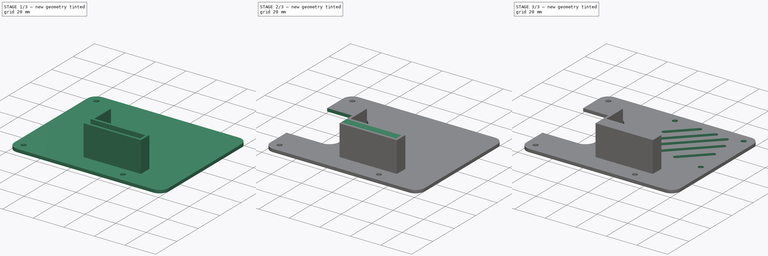
[diagram: build sequence overview — one tinted view per stage of 3, left to right]
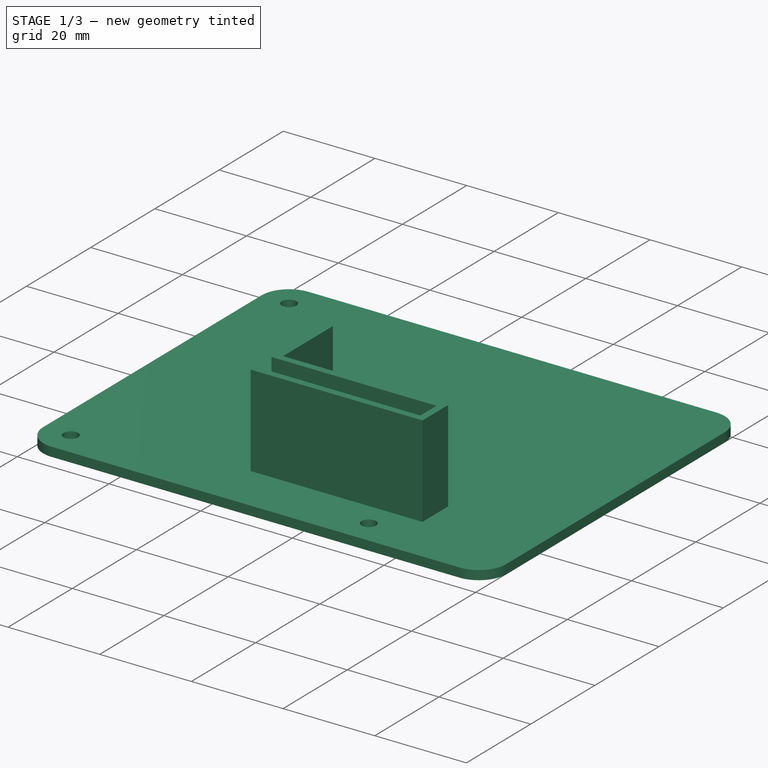
[diagram: stage 1 of 3 — iso view after this stage's code; geometry added in this stage tinted green]
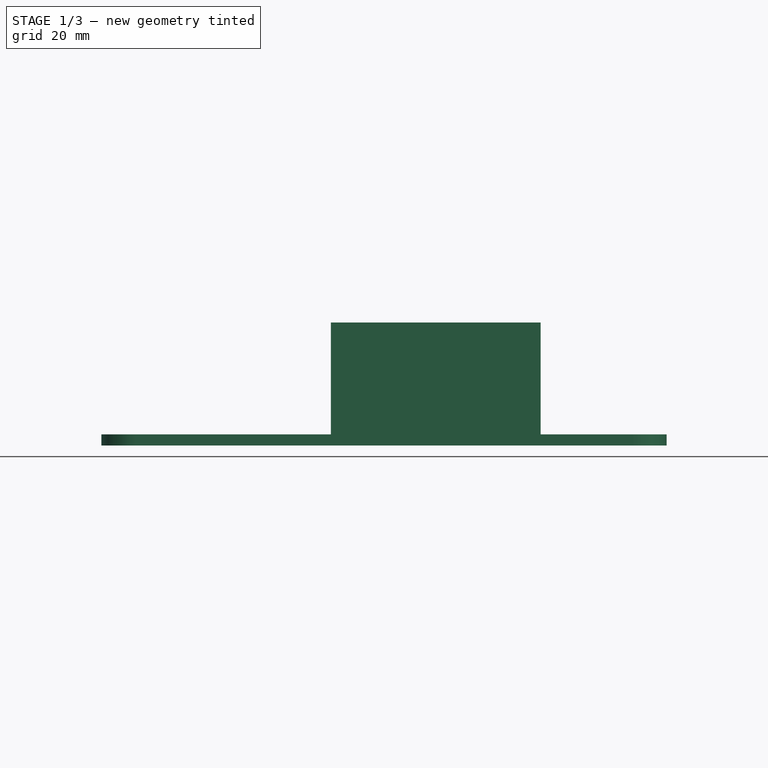
[diagram: stage 1 of 3 — front view after this stage's code; geometry added in this stage tinted green]
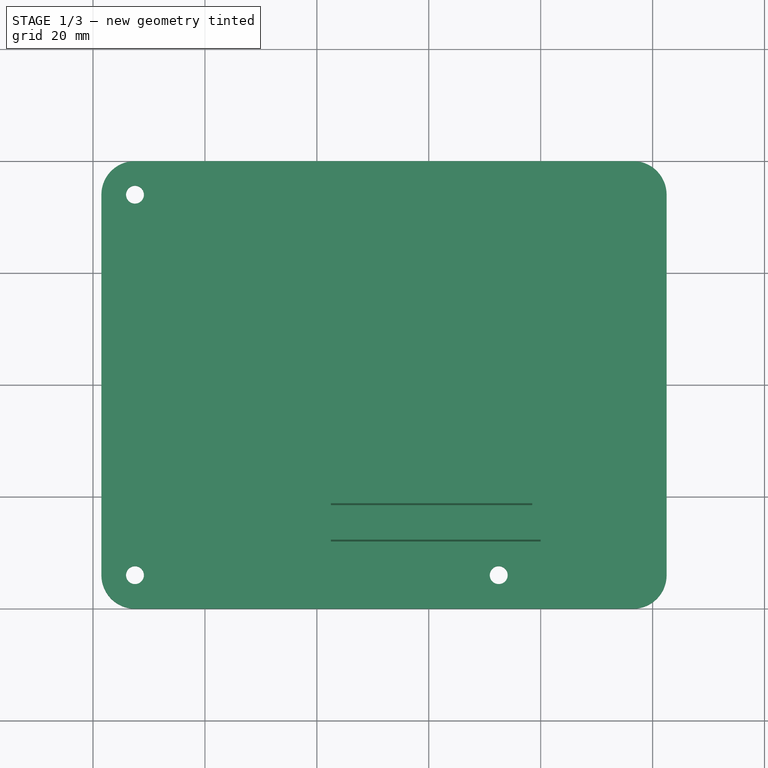
[diagram: stage 1 of 3 — top view after this stage's code; geometry added in this stage tinted green]
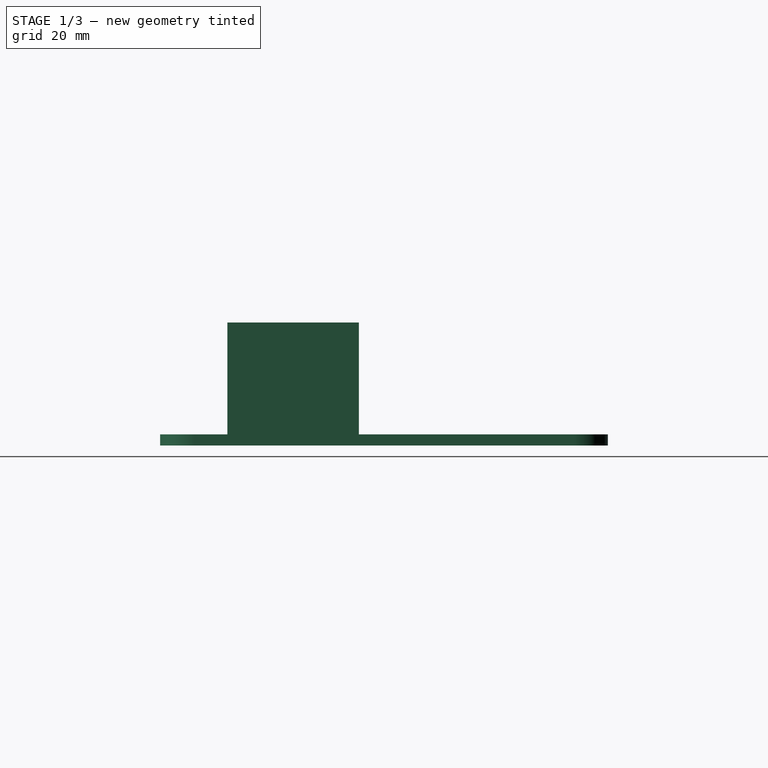
[diagram: stage 1 of 3 — right view after this stage's code; geometry added in this stage tinted green]
FCSTD DOCUMENT  (FreeCAD 0.19R24291 (Git))
Label: receiver-and-balance-breakout
License: All rights reserved
LicenseURL: http://en.wikipedia.org/wiki/All_rights_reserved
objects: Sketcher::SketchObject×6, PartDesign::Pad×3, PartDesign::Pocket×3, Spreadsheet::Sheet×1, PartDesign::Plane×1, PartDesign::Body×1
note: 20 computed .brp shape members not serialized (recipe doc carries the construction recipe); baked Part::Feature solids carry a one-line shape summary decoded from their .brp

FEATURE [Spreadsheet::Sheet] Spreadsheet  label="measurements"
  cells = A1=mountingSeparationWidth; B1(mountingSeparationWidth)=68; D1=receiverWidth; E1(receiverWidth)=19; A2=mountingSeparationLength; B2(mountingSeparationLength)=65; A3=mountingBoltRadius; B3(mountingBoltRadius)=1.6; A4=baseThickness; B4(baseThickness)=2; A5=wallThickness; B5(wallThickness)=1.5; A6=mountingPillarRadius; B6(mountingPillarRadius)=6
FEATURE [Sketcher::SketchObject] Sketch  label="mountingSurface"
  FullyConstrained = true
  MapMode = 5
  Support = -> [XY_Plane]
  expr: Constraints[0] = Spreadsheet.mountingBoltRadius
  expr: Constraints[2] = Spreadsheet.mountingBoltRadius
  expr: Constraints[4] = Spreadsheet.mountingSeparationLength
  expr: Constraints[1] = Spreadsheet.mountingBoltRadius
  expr: Constraints[3] = Spreadsheet.mountingSeparationWidth
  expr: Constraints[17] = Spreadsheet.mountingPillarRadius
  sketch-geometry (11):
    g0: Circle CenterX=-32.5 CenterY=34 CenterZ=0 NormalX=0 NormalY=0 NormalZ=1 AngleXU=0 Radius=1.6
    g1: Circle CenterX=-32.5 CenterY=-34 CenterZ=0 NormalX=0 NormalY=0 NormalZ=1 AngleXU=0 Radius=1.6
    g2: Circle CenterX=32.5 CenterY=-34 CenterZ=0 NormalX=0 NormalY=0 NormalZ=1 AngleXU=0 Radius=1.6
    g3: LineSegment StartX=-32.5 StartY=40 StartZ=0 EndX=56.5 EndY=40 EndZ=0
    g4: LineSegment StartX=62.5 StartY=34 StartZ=0 EndX=62.5 EndY=-34 EndZ=0
    g5: LineSegment StartX=56.5 StartY=-40 StartZ=0 EndX=-32.5 EndY=-40 EndZ=0
    g6: LineSegment StartX=-38.5 StartY=-34 StartZ=0 EndX=-38.5 EndY=34 EndZ=0
    g7: ArcOfCircle CenterX=-32.5 CenterY=-34 CenterZ=0 NormalX=0 NormalY=0 NormalZ=1 AngleXU=0 Radius=6 StartAngle=3.14159 EndAngle=4.71239
    g8: ArcOfCircle CenterX=-32.5 CenterY=34 CenterZ=0 NormalX=0 NormalY=0 NormalZ=1 AngleXU=0 Radius=6 StartAngle=1.5708 EndAngle=3.14159
    g9: ArcOfCircle CenterX=56.5 CenterY=34 CenterZ=0 NormalX=0 NormalY=0 NormalZ=1 AngleXU=0 Radius=6 StartAngle=4e-16 EndAngle=1.5708
    g10: ArcOfCircle CenterX=56.5 CenterY=-34 CenterZ=0 NormalX=0 NormalY=0 NormalZ=1 AngleXU=0 Radius=6 StartAngle=4.71239 EndAngle=6.28319
  constraints (25):
    c: Radius(g0) = 1.6
    c: Radius(g1) = 1.6
    c: Radius(g2) = 1.6
    c: DistanceY(g1,g0) = 68
    c: DistanceX(g1,g2) = 65
    c: Symmetric(g2,g1,g-2)
    c: Symmetric(g0,g1,g-1)
    c: Horizontal(g3)
    c: Horizontal(g5)
    c: Vertical(g4)
    c: Vertical(g6)
    c: Tangent(g6,g7) = 1.5708
    c: Tangent(g5,g7) = 1.5708
    c: Tangent(g3,g8) = 1.5708
    c: Tangent(g6,g8) = 1.5708
    c: Coincident(g8,g0)
    c: Coincident(g7,g1)
    c: DistanceY(g0,g3) = 6
    c: Tangent(g3,g9) = 1.5708
    c: Tangent(g4,g9) = 1.5708
    c: Tangent(g4,g10) = 1.5708
    c: Tangent(g5,g10) = 1.5708
    c: Equal(g7,g10)
    c: Equal(g7,g9)
    c: DistanceX(g2,g4) = 30
FEATURE [PartDesign::Pad] Pad  label="mountingSurfacePad"
  Direction = (1,1,1)
  Length = 2
  Length2 = 100
  Profile = -> Sketch
  Type = 0
  expr: Length = Spreadsheet.baseThickness
FEATURE [Sketcher::SketchObject] Sketch001  label="receiverCasing"
  ExternalGeometry = -> [Sketch]
  FullyConstrained = false
  MapMode = 5
  Support = -> [XY_Plane]
  expr: Constraints[20] = Spreadsheet.wallThickness
  expr: Constraints[21] = Spreadsheet.wallThickness
  expr: Constraints[22] = Spreadsheet.wallThickness
  expr: Constraints[23] = Spreadsheet.wallThickness
  expr: Constraints[29] = Spreadsheet.mountingPillarRadius
  sketch-geometry (11):
    g0: LineSegment StartX=4 StartY=-4.5 StartZ=0 EndX=2.5 EndY=-4.5 EndZ=0
    g1: LineSegment StartX=2.5 StartY=-4.5 StartZ=0 EndX=2.5 EndY=-21.5 EndZ=0
    g2: LineSegment StartX=4 StartY=-4.5 StartZ=0 EndX=4 EndY=-20 EndZ=0
    g3: LineSegment StartX=4 StartY=-20 StartZ=0 EndX=40 EndY=-20 EndZ=0
    g4: LineSegment StartX=40 StartY=-20 StartZ=0 EndX=40 EndY=-28 EndZ=0
    g5: LineSegment StartX=40 StartY=-28 StartZ=0 EndX=2.5 EndY=-28 EndZ=0
    g6: LineSegment StartX=2.5 StartY=-28 StartZ=0 EndX=2.5 EndY=-26.5 EndZ=0
    g7: LineSegment StartX=2.5 StartY=-26.5 StartZ=0 EndX=38.5 EndY=-26.5 EndZ=0
    g8: LineSegment StartX=38.5 StartY=-26.5 StartZ=0 EndX=38.5 EndY=-21.5 EndZ=0
    g9: LineSegment StartX=38.5 StartY=-21.5 StartZ=0 EndX=2.5 EndY=-21.5 EndZ=0
    g10: LineSegment StartX=8.54311 StartY=-24 StartZ=0 EndX=-1.19896 EndY=-24 EndZ=0
  constraints (31):
    c: Coincident(g1,g0)
    c: Vertical(g1)
    c: Coincident(g2,g0)
    c: Vertical(g2)
    c: Coincident(g3,g2)
    c: Horizontal(g3)
    c: Coincident(g4,g3)
    c: Vertical(g4)
    c: Coincident(g5,g4)
    c: Horizontal(g5)
    c: Coincident(g6,g5)
    c: Vertical(g6)
    c: Coincident(g7,g6)
    c: Horizontal(g7)
    c: Coincident(g8,g7)
    c: Vertical(g8)
    c: Coincident(g9,g8)
    c: Coincident(g9,g1)
    c: Horizontal(g9)
    c: Horizontal(g0)
    c: DistanceY(g1,g2) = 1.5
    c: DistanceY(g6,g6) = 1.5
    c: DistanceX(g0,g0) = 1.5
    c: DistanceX(g8,g3) = 1.5
    c: DistanceY(g1,g1) = 17
    c: DistanceY(g8,g8) = 5
    c: DistanceX(g9,g9) = 36
    c: Horizontal(g10)
    c: Symmetric(g6,g1,g10)
    c: DistanceY(g-3,g5) = 6
    c: DistanceX(g-3,g1) = 35
FEATURE [PartDesign::Pad] Pad001  label="receiverCasingPad"
  BaseFeature = -> Pad
  Direction = (1,1,1)
  Length = 22
  Length2 = 100
  Profile = -> Sketch001
  Type = 0
  expr: Length = Spreadsheet.receiverWidth + 2 * Spreadsheet.wallThickness
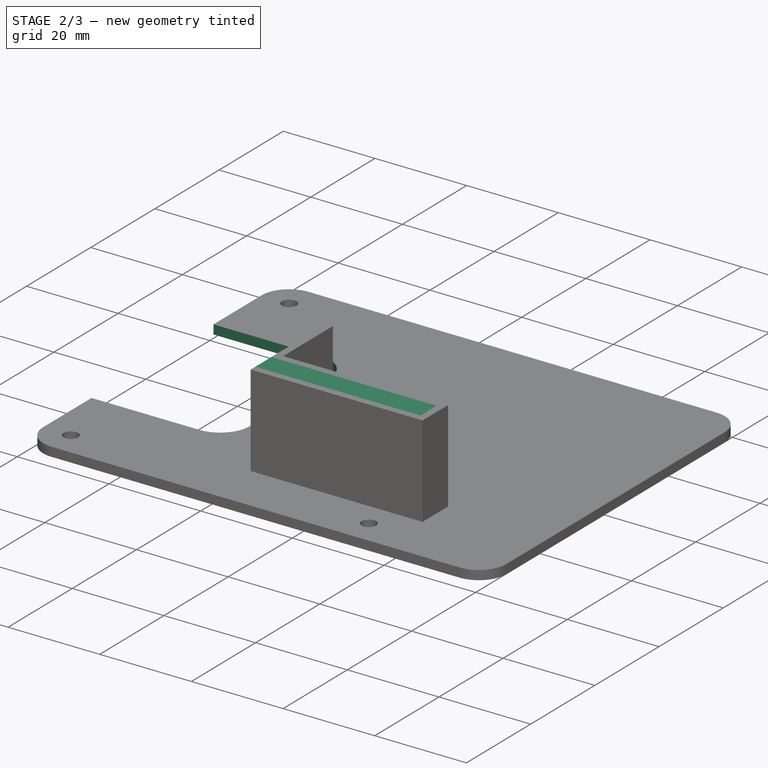
[diagram: stage 2 of 3 — iso view after this stage's code; geometry added in this stage tinted green]
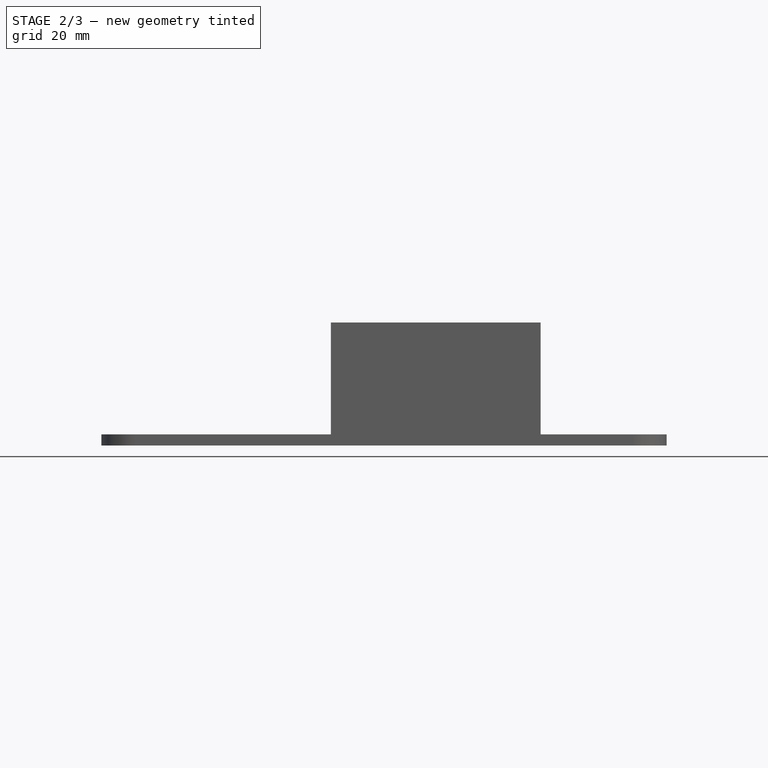
[diagram: stage 2 of 3 — front view after this stage's code; geometry added in this stage tinted green]
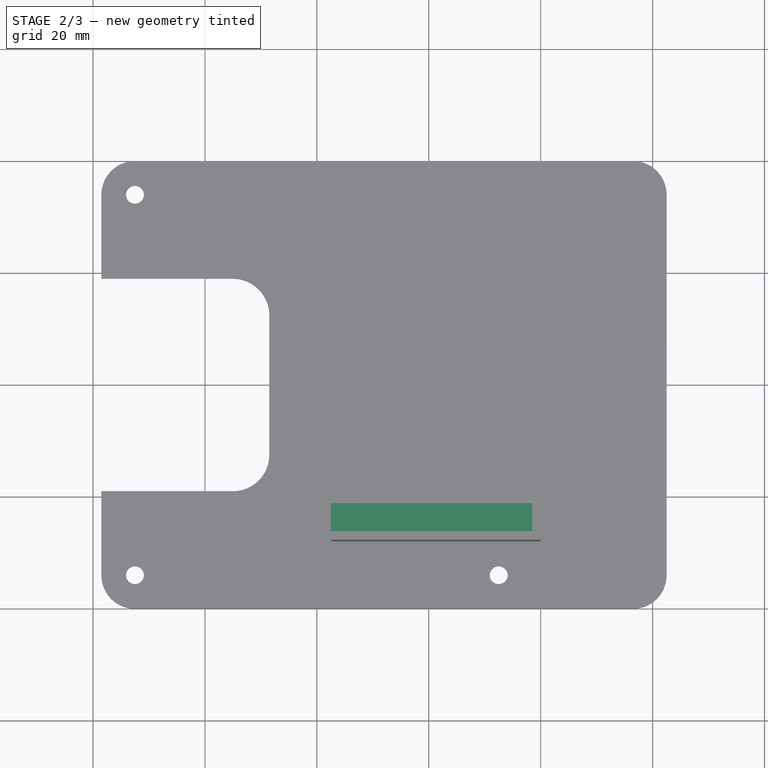
[diagram: stage 2 of 3 — top view after this stage's code; geometry added in this stage tinted green]
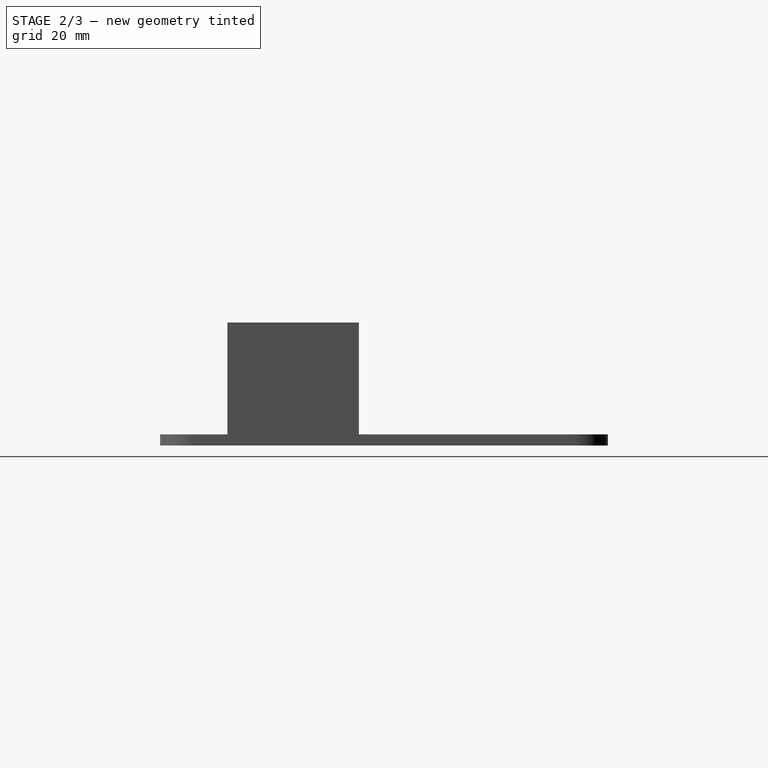
[diagram: stage 2 of 3 — right view after this stage's code; geometry added in this stage tinted green]
FEATURE [PartDesign::Plane] DatumPlane  label="receiverCasingTopPlane"
  Length = 118.978
  MapMode = 5
  Placement = pos=(0,0,22) rot=(0,0,1;0rad)
  ResizeMode = 0
  Support = -> [Pad001]
  Width = 97.9778
FEATURE [Sketcher::SketchObject] Sketch002  label="receiverCasingTop"
  ExternalGeometry = -> [Sketch001]
  FullyConstrained = true
  MapMode = 5
  Placement = pos=(0,0,22) rot=(0,0,1;0rad)
  Support = -> [DatumPlane]
  sketch-geometry (4):
    g0: LineSegment StartX=2.5 StartY=-21.5 StartZ=0 EndX=38.5 EndY=-21.5 EndZ=0
    g1: LineSegment StartX=38.5 StartY=-21.5 StartZ=0 EndX=38.5 EndY=-26.5 EndZ=0
    g2: LineSegment StartX=38.5 StartY=-26.5 StartZ=0 EndX=2.5 EndY=-26.5 EndZ=0
    g3: LineSegment StartX=2.5 StartY=-26.5 StartZ=0 EndX=2.5 EndY=-21.5 EndZ=0
  constraints (10):
    c: Coincident(g0,g1)
    c: Coincident(g1,g2)
    c: Coincident(g2,g3)
    c: Coincident(g3,g0)
    c: Horizontal(g0)
    c: Horizontal(g2)
    c: Vertical(g1)
    c: Vertical(g3)
    c: Coincident(g0,g-3)
    c: Coincident(g1,g-4)
FEATURE [PartDesign::Pad] Pad002  label="receiverCasingTopPad"
  BaseFeature = -> Pad001
  Direction = (1,1,1)
  Length = 1.5
  Length2 = 100
  Profile = -> Sketch002
  Reversed = true
  Type = 0
  expr: Length = Spreadsheet.wallThickness
FEATURE [Sketcher::SketchObject] Sketch003  label="bmsAccessCutout"
  ExternalGeometry = -> [Sketch]
  FullyConstrained = true
  MapMode = 5
  Support = -> [XY_Plane]
  sketch-geometry (6):
    g0: LineSegment StartX=-38.5 StartY=19 StartZ=0 EndX=-15 EndY=19 EndZ=0
    g1: LineSegment StartX=-8.5 StartY=12.5 StartZ=0 EndX=-8.5 EndY=-12.5 EndZ=0
    g2: LineSegment StartX=-15 StartY=-19 StartZ=0 EndX=-38.5 EndY=-19 EndZ=0
    g3: LineSegment StartX=-38.5 StartY=-19 StartZ=0 EndX=-38.5 EndY=19 EndZ=0
    g4: ArcOfCircle CenterX=-15 CenterY=-12.5 CenterZ=0 NormalX=0 NormalY=0 NormalZ=1 AngleXU=0 Radius=6.5 StartAngle=4.71239 EndAngle=6.28319
    g5: ArcOfCircle CenterX=-15 CenterY=12.5 CenterZ=0 NormalX=0 NormalY=0 NormalZ=1 AngleXU=0 Radius=6.5 StartAngle=1.34e-14 EndAngle=1.5708
  constraints (16):
    c: Coincident(g2,g3)
    c: Coincident(g3,g0)
    c: Horizontal(g0)
    c: Horizontal(g2)
    c: Vertical(g1)
    c: Vertical(g3)
    c: PointOnObject(g0,g-5)
    c: DistanceY(g-4,g2) = 15
    c: DistanceY(g0,g-3) = 15
    c: Tangent(g1,g4) = 1.5708
    c: Tangent(g2,g4) = 1.5708
    c: Tangent(g0,g5) = 1.5708
    c: Tangent(g1,g5) = 1.5708
    c: DistanceX(g2,g1) = 30
    c: Equal(g4,g5)
    c: DistanceY(g1,g1) = 25
FEATURE [PartDesign::Pocket] Pocket  label="bmsAccessCutoutPocket"
  BaseFeature = -> Pad002
  Length = 5
  Length2 = 100
  Profile = -> Sketch003
  Reversed = true
  Type = 1
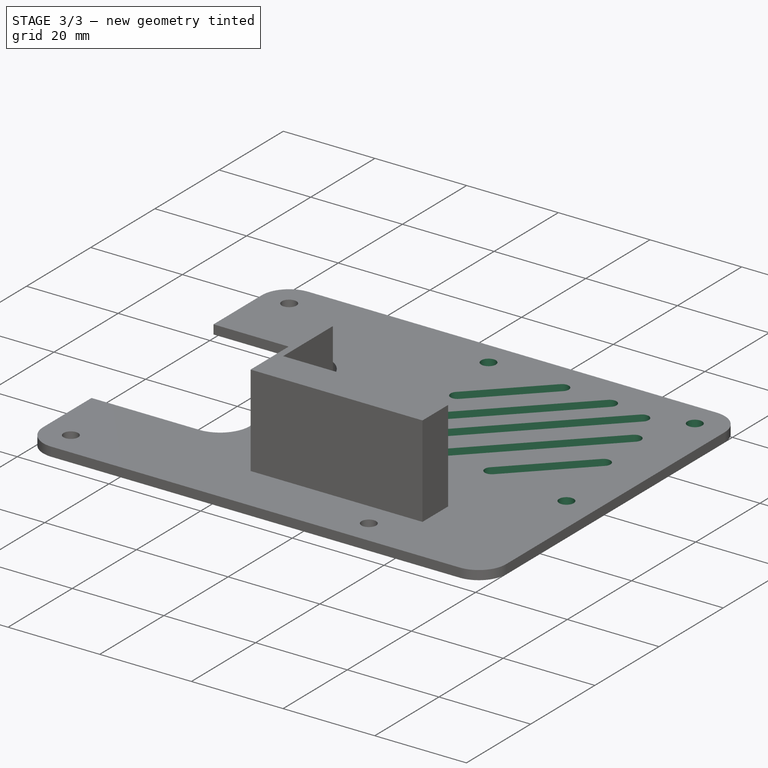
[diagram: stage 3 of 3 — iso view after this stage's code; geometry added in this stage tinted green]
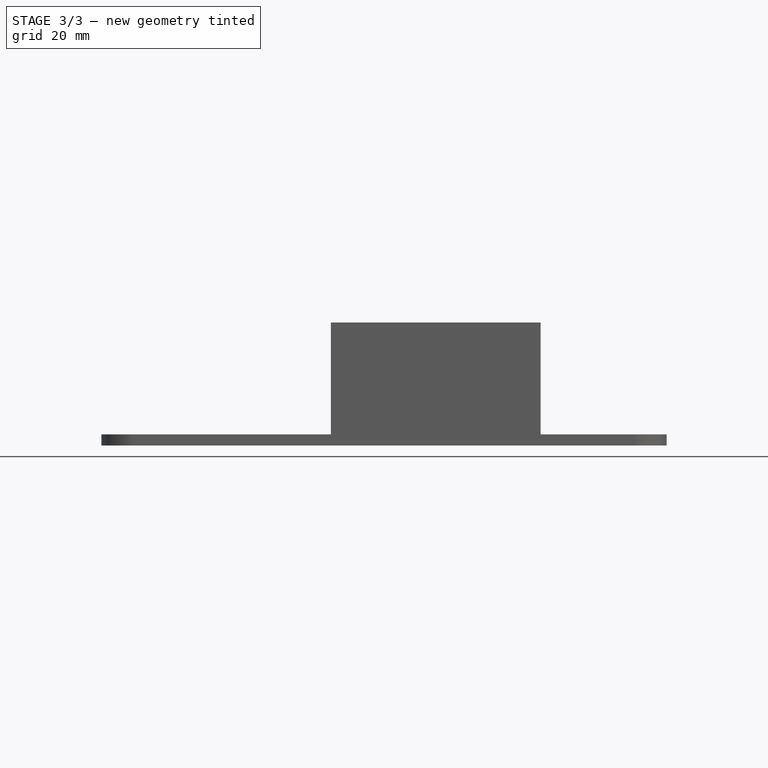
[diagram: stage 3 of 3 — front view after this stage's code; geometry added in this stage tinted green]
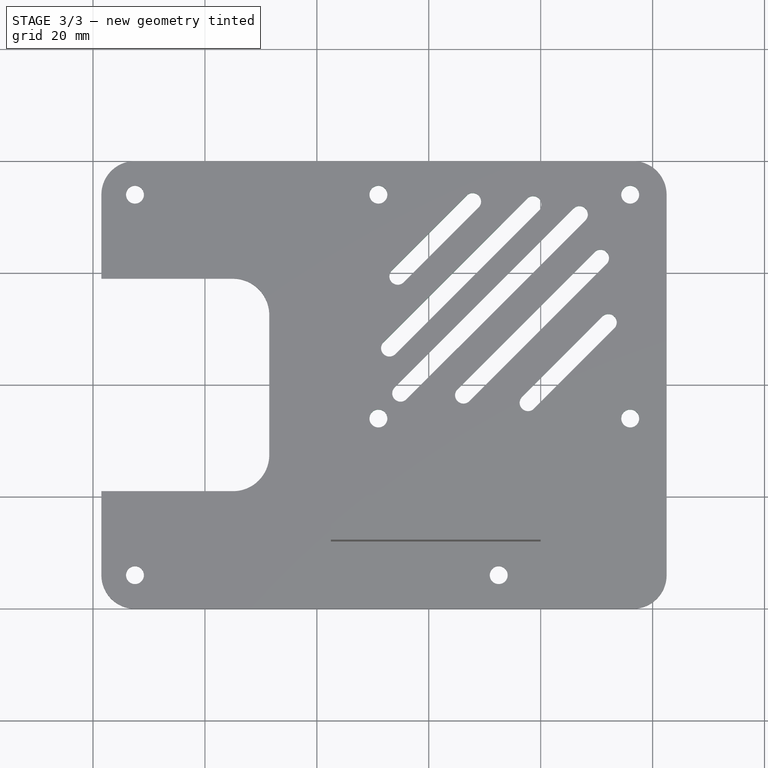
[diagram: stage 3 of 3 — top view after this stage's code; geometry added in this stage tinted green]
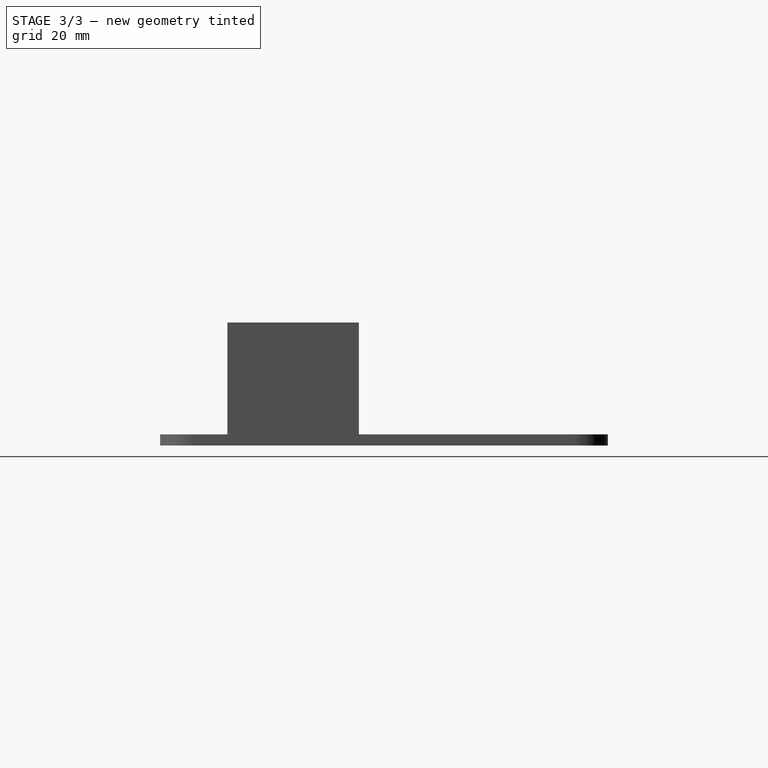
[diagram: stage 3 of 3 — right view after this stage's code; geometry added in this stage tinted green]
FEATURE [Sketcher::SketchObject] Sketch004  label="bmsBreakoutMountHoles"
  ExternalGeometry = -> [Sketch,Sketch001]
  FullyConstrained = false
  MapMode = 5
  Support = -> [XY_Plane]
  expr: Constraints[10] = Spreadsheet.mountingBoltRadius
  expr: Constraints[11] = Spreadsheet.mountingBoltRadius
  expr: Constraints[12] = Spreadsheet.mountingBoltRadius
  expr: Constraints[13] = Spreadsheet.mountingBoltRadius
  sketch-geometry (6):
    g0: Circle CenterX=11 CenterY=34 CenterZ=0 NormalX=0 NormalY=0 NormalZ=1 AngleXU=0 Radius=1.6
    g1: Circle CenterX=11 CenterY=-6 CenterZ=0 NormalX=0 NormalY=0 NormalZ=1 AngleXU=0 Radius=1.6
    g2: Circle CenterX=56 CenterY=34 CenterZ=0 NormalX=0 NormalY=0 NormalZ=1 AngleXU=0 Radius=1.6
    g3: Circle CenterX=56 CenterY=-6 CenterZ=0 NormalX=0 NormalY=0 NormalZ=1 AngleXU=0 Radius=1.6
    g4: LineSegment StartX=18.6637 StartY=14 StartZ=0 EndX=52.5084 EndY=14 EndZ=0
    g5: LineSegment StartX=33.5 StartY=26.8509 StartZ=0 EndX=33.5 EndY=3.81776 EndZ=0
  constraints (14):
    c: DistanceY(g3,g2) = 40
    c: DistanceY(g1,g0) = 40
    c: DistanceX(g0,g2) = 45
    c: DistanceX(g1,g3) = 45
    c: Horizontal(g4)
    c: Vertical(g5)
    c: Symmetric(g2,g0,g5)
    c: Symmetric(g3,g2,g4)
    c: DistanceY(g0,g-3) = 0
    c: DistanceX(g-4,g1) = 7
    c: Radius(g0) = 1.6
    c: Radius(g2) = 1.6
    c: Radius(g1) = 1.6
    c: Radius(g3) = 1.6
FEATURE [PartDesign::Pocket] Pocket001  label="bmsBreakoutMountHolesPocket"
  BaseFeature = -> Pocket
  Length = 5
  Length2 = 100
  Profile = -> Sketch004
  Reversed = true
  Type = 1
FEATURE [Sketcher::SketchObject] Sketch005  label="aestheticPattern"
  ExternalGeometry = -> [Sketch004]
  FullyConstrained = false
  MapMode = 5
  Support = -> [XY_Plane]
  sketch-geometry (20):
    g0: ArcOfCircle CenterX=27.8524 CenterY=32.7944 CenterZ=0 NormalX=0 NormalY=0 NormalZ=1 AngleXU=0 Radius=1.5 StartAngle=5.49779 EndAngle=8.63938
    g1: ArcOfCircle CenterX=14.4577 CenterY=19.3997 CenterZ=0 NormalX=0 NormalY=0 NormalZ=1 AngleXU=0 Radius=1.5 StartAngle=2.35619 EndAngle=5.49779
    g2: LineSegment StartX=26.7917 StartY=33.8551 StartZ=0 EndX=13.3971 EndY=20.4604 EndZ=0
    g3: LineSegment StartX=28.9131 StartY=31.7337 StartZ=0 EndX=15.5184 EndY=18.339 EndZ=0
    g4: ArcOfCircle CenterX=38.6487 CenterY=32.239 CenterZ=0 NormalX=0 NormalY=0 NormalZ=1 AngleXU=0 Radius=1.5 StartAngle=5.49779 EndAngle=8.63938
    g5: ArcOfCircle CenterX=12.9725 CenterY=6.56282 CenterZ=0 NormalX=0 NormalY=0 NormalZ=1 AngleXU=0 Radius=1.5 StartAngle=2.35619 EndAngle=5.49779
    g6: LineSegment StartX=37.588 StartY=33.2997 StartZ=0 EndX=11.9119 EndY=7.62348 EndZ=0
    g7: LineSegment StartX=39.7094 StartY=31.1783 StartZ=0 EndX=14.0332 EndY=5.50216 EndZ=0
    g8: ArcOfCircle CenterX=46.9308 CenterY=30.464 CenterZ=0 NormalX=0 NormalY=0 NormalZ=1 AngleXU=0 Radius=1.5 StartAngle=5.49779 EndAngle=8.63938
    g9: ArcOfCircle CenterX=14.9667 CenterY=-1.5 CenterZ=0 NormalX=0 NormalY=0 NormalZ=1 AngleXU=0 Radius=1.5 StartAngle=2.35619 EndAngle=5.49779
    g10: LineSegment StartX=45.8701 StartY=31.5247 StartZ=0 EndX=13.9061 EndY=-0.43934 EndZ=0
    g11: LineSegment StartX=47.9914 StartY=29.4034 StartZ=0 EndX=16.0274 EndY=-2.56066 EndZ=0
    g12: ArcOfCircle CenterX=50.7092 CenterY=22.6697 CenterZ=0 NormalX=0 NormalY=0 NormalZ=1 AngleXU=0 Radius=1.5 StartAngle=5.49779 EndAngle=8.63938
    g13: ArcOfCircle CenterX=26.1968 CenterY=-1.84268 CenterZ=0 NormalX=0 NormalY=0 NormalZ=1 AngleXU=0 Radius=1.5 StartAngle=2.35619 EndAngle=5.49779
    g14: LineSegment StartX=49.6485 StartY=23.7304 StartZ=0 EndX=25.1361 EndY=-0.782016 EndZ=0
    g15: LineSegment StartX=51.7698 StartY=21.6091 StartZ=0 EndX=27.2574 EndY=-2.90334 EndZ=0
    g16: ArcOfCircle CenterX=52.0898 CenterY=11.1649 CenterZ=0 NormalX=0 NormalY=0 NormalZ=1 AngleXU=0 Radius=1.5 StartAngle=5.49779 EndAngle=8.63938
    g17: ArcOfCircle CenterX=37.7352 CenterY=-3.18972 CenterZ=0 NormalX=0 NormalY=0 NormalZ=1 AngleXU=0 Radius=1.5 StartAngle=2.35619 EndAngle=5.49779
    g18: LineSegment StartX=51.0291 StartY=12.2255 StartZ=0 EndX=36.6745 EndY=-2.12906 EndZ=0
    g19: LineSegment StartX=53.1504 StartY=10.1042 StartZ=0 EndX=38.7959 EndY=-4.25038 EndZ=0
  constraints (36):
    c: Tangent(g0,g3) = 1.5708
    c: Tangent(g0,g2) = -1.5708
    c: Tangent(g2,g1) = -1.5708
    c: Tangent(g3,g1) = 1.5708
    c: Equal(g0,g1)
    c: Angle(g-1,g3) = 0.785398
    c: Distance(g0,g0) = 3
    c: Tangent(g4,g7) = 1.5708
    c: Tangent(g4,g6) = -1.5708
    c: Tangent(g6,g5) = -1.5708
    c: Tangent(g7,g5) = 1.5708
    c: Equal(g4,g5)
    c: Tangent(g8,g11) = 1.5708
    c: Tangent(g8,g10) = -1.5708
    c: Tangent(g10,g9) = -1.5708
    c: Tangent(g11,g9) = 1.5708
    c: Equal(g8,g9)
    c: Tangent(g9,g-1)
    c: Tangent(g12,g15) = 1.5708
    c: Tangent(g12,g14) = -1.5708
    c: Tangent(g14,g13) = -1.5708
    c: Tangent(g15,g13) = 1.5708
    c: Equal(g12,g13)
    c: Angle(g7,g-1) = 2.35619
    c: Angle(g11,g-1) = 2.35619
    c: Angle(g15,g-1) = 2.35619
    c: Distance(g4,g4) = 3
    c: Distance(g8,g8) = 3
    c: Distance(g12,g12) = 3
    c: Tangent(g16,g19) = 1.5708
    c: Tangent(g16,g18) = -1.5708
    c: Tangent(g18,g17) = -1.5708
    c: Tangent(g19,g17) = 1.5708
    c: Equal(g16,g17)
    c: Angle(g19,g-1) = 2.35619
    c: Distance(g16,g16) = 3
FEATURE [PartDesign::Pocket] Pocket002  label="aestheticPatternPocket"
  BaseFeature = -> Pocket001
  Length = 5
  Length2 = 100
  Profile = -> Sketch005
  Reversed = true
  Type = 1
FEATURE [PartDesign::Body] Body
  Group = -> [Sketch,Pad,Sketch001,Pad001,Sketch002,DatumPlane,Pad002,Sketch003,Pocket,Sketch004,Pocket001,Sketch005,Pocket002]
  Origin = -> Origin
  Tip = -> Pocket002
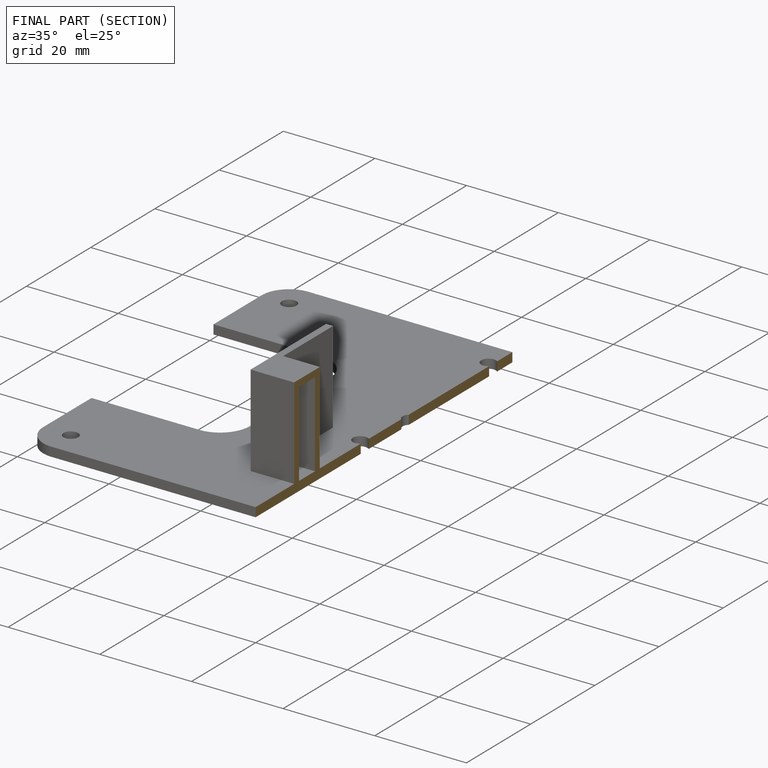
[diagram: finished part — half-section view (interior)]
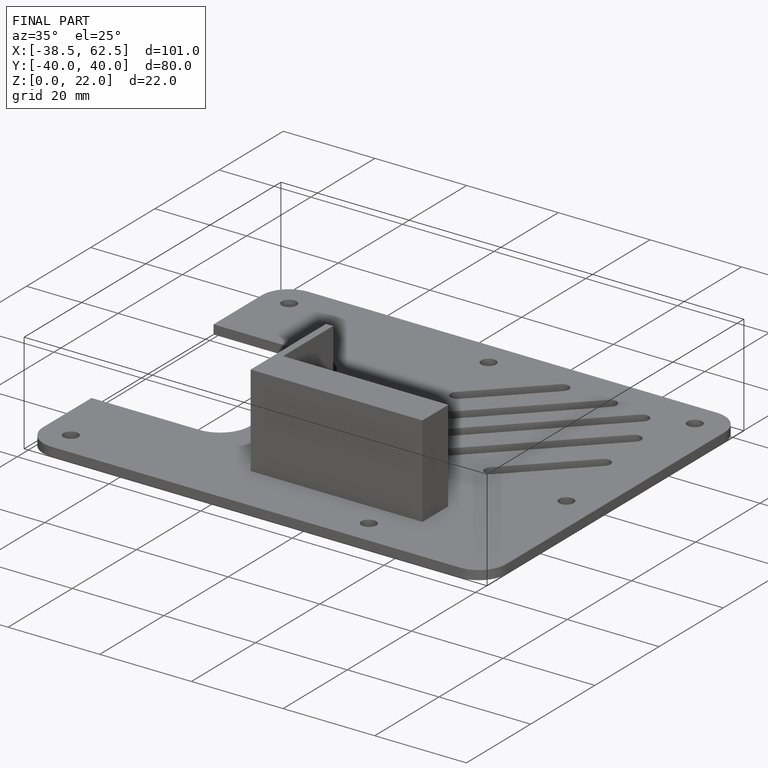
[diagram: finished part — iso view with bounding-box wireframe]
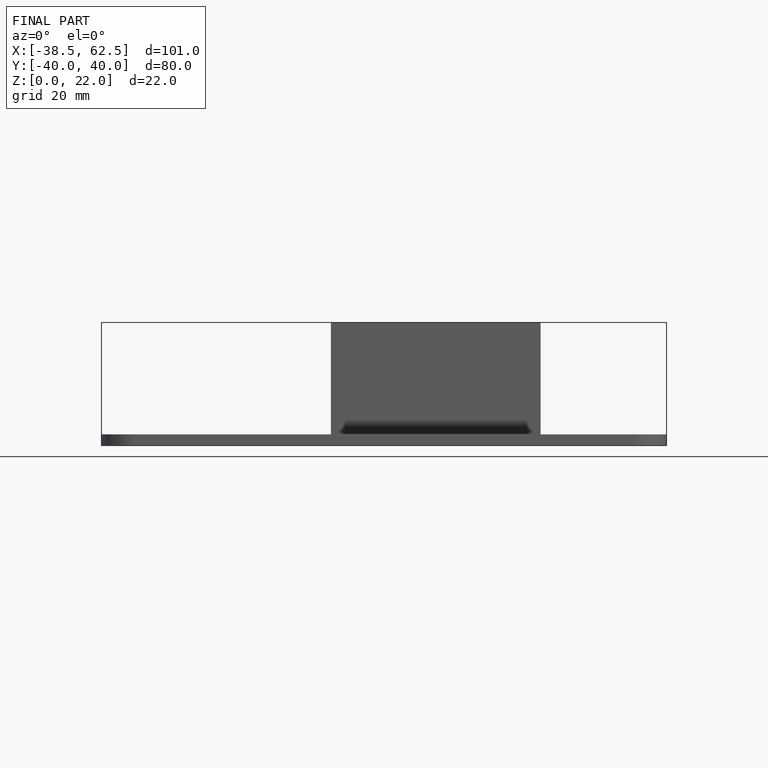
[diagram: finished part — front view with bounding-box wireframe]
